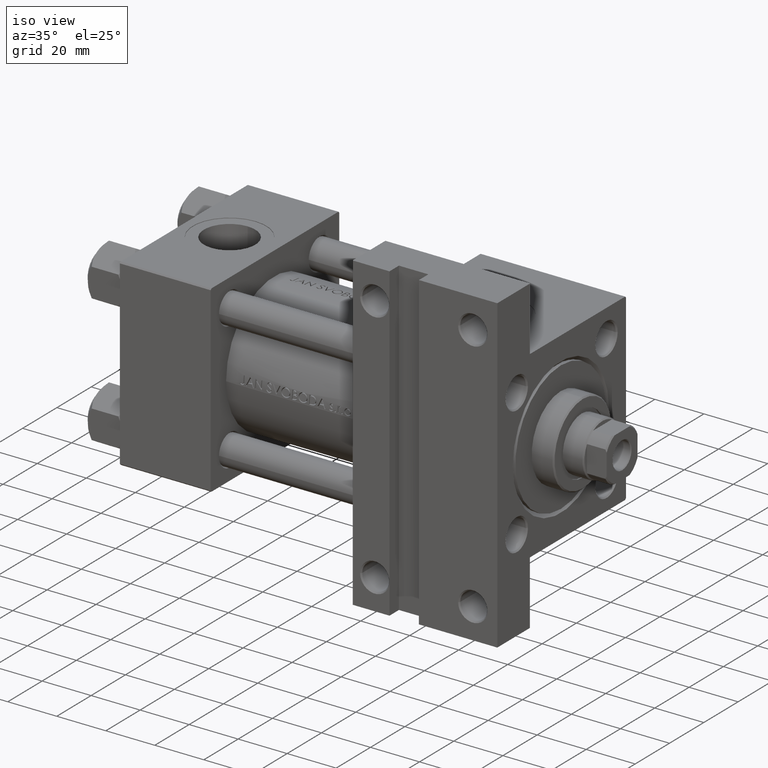
[diagram: clean part render]
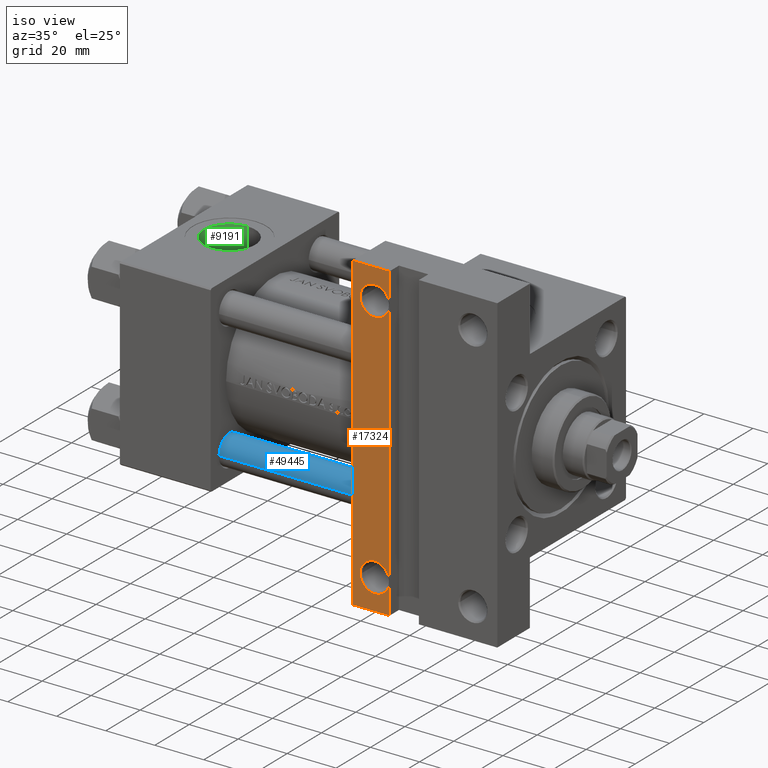
[diagram: same view with three faces highlighted in distinct colors, each labeled with its STEP entity id]
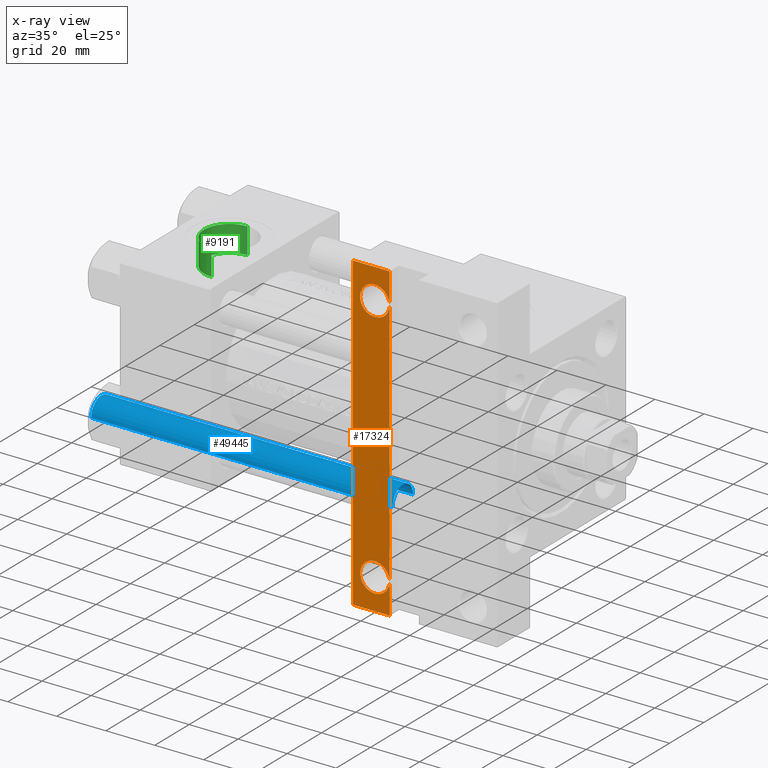
[diagram: x-ray of the same camera — body ghosted, the three highlighted faces saturated]
A machine part, iso view with three faces highlighted in distinct colors.
The next image is the same camera in x-ray (body ghosted, the three faces saturated) — at least one of them is partly hidden behind the body in this view.
Their STEP definitions:

[orange] entity #17324 — the highlighted planar face has unit normal (0, -1, 0).
#743 = CARTESIAN_POINT ( 'NONE',  ( 103.9999999999999574, 50.99999999999999289, -37.50000000000000000 ) ) ;
#905 = CARTESIAN_POINT ( 'NONE',  ( 98.00049999999993133, 50.99999999999999289, -37.50000000000000000 ) ) ;
#2136 = CARTESIAN_POINT ( 'NONE',  ( 103.9999999999999574, 50.99999999999999289, -37.50000000000000000 ) ) ;
#4329 = DIRECTION ( 'NONE',  ( 0.000000000000000000, 1.000000000000000000, 0.000000000000000000 ) ) ;
#4785 = AXIS2_PLACEMENT_3D ( 'NONE', #45256, #42460, #34202 ) ;
#6113 = CARTESIAN_POINT ( 'NONE',  ( 95.00000000000000000, 63.50000000000000000, -37.50000000000000000 ) ) ;
#6211 = LINE ( 'NONE', #30039, #19925 ) ;
#6879 = CARTESIAN_POINT ( 'NONE',  ( 109.9994999999999692, -50.99999999999999289, -37.50000000000000000 ) ) ;
#6944 = EDGE_CURVE ( 'NONE', #48220, #46235, #8399, .T. ) ;
#8399 = LINE ( 'NONE', #15930, #39322 ) ;
#8862 = ORIENTED_EDGE ( 'NONE', *, *, #6944, .F. ) ;
#9029 = VERTEX_POINT ( 'NONE', #905 ) ;
#10353 = CARTESIAN_POINT ( 'NONE',  ( 110.0000000000000000, 63.50000000000000000, -37.50000000000000000 ) ) ;
#11509 = CARTESIAN_POINT ( 'NONE',  ( 98.00049999999993133, -50.99999999999999289, -37.50000000000000000 ) ) ;
#11976 = ORIENTED_EDGE ( 'NONE', *, *, #42606, .T. ) ;
#12336 = ORIENTED_EDGE ( 'NONE', *, *, #25071, .T. ) ;
#12645 = CARTESIAN_POINT ( 'NONE',  ( 95.00000000000000000, 63.50000000000000000, -37.50000000000000000 ) ) ;
#12683 = EDGE_CURVE ( 'NONE', #43867, #46235, #6211, .T. ) ;
#15930 = CARTESIAN_POINT ( 'NONE',  ( 95.00000000000000000, 37.50000000000000000, -37.50000000000000000 ) ) ;
#16074 = DIRECTION ( 'NONE',  ( -0.000000000000000000, -0.000000000000000000, 1.000000000000000000 ) ) ;
#16335 = DIRECTION ( 'NONE',  ( -1.000000000000000000, 0.000000000000000000, 0.000000000000000000 ) ) ;
#16428 = DIRECTION ( 'NONE',  ( 1.000000000000000000, 0.000000000000000000, 0.000000000000000000 ) ) ;
#16743 = AXIS2_PLACEMENT_3D ( 'NONE', #2136, #17472, #21510 ) ;
#17324 = ADVANCED_FACE ( 'NONE', ( #28952, #25201, #18640 ), #41479, .T. ) ;
#17472 = DIRECTION ( 'NONE',  ( -0.000000000000000000, -0.000000000000000000, 1.000000000000000000 ) ) ;
#18463 = DIRECTION ( 'NONE',  ( -1.000000000000000000, 4.704334850106596780E-16, -0.000000000000000000 ) ) ;
#18486 = DIRECTION ( 'NONE',  ( -1.000000000000000000, 0.000000000000000000, 0.000000000000000000 ) ) ;
#18640 = FACE_BOUND ( 'NONE', #26028, .T. ) ;
#19067 = ORIENTED_EDGE ( 'NONE', *, *, #12683, .T. ) ;
#19925 = VECTOR ( 'NONE', #18463, 1000.000000000000000 ) ;
#20230 = DIRECTION ( 'NONE',  ( 0.000000000000000000, -1.000000000000000000, 0.000000000000000000 ) ) ;
#21030 = VECTOR ( 'NONE', #4329, 1000.000000000000000 ) ;
#21510 = DIRECTION ( 'NONE',  ( -1.000000000000000000, 0.000000000000000000, 0.000000000000000000 ) ) ;
#21522 = DIRECTION ( 'NONE',  ( -0.000000000000000000, -0.000000000000000000, 1.000000000000000000 ) ) ;
#21612 = ORIENTED_EDGE ( 'NONE', *, *, #41307, .F. ) ;
#23926 = LINE ( 'NONE', #42761, #21030 ) ;
#25071 = EDGE_CURVE ( 'NONE', #48220, #29568, #40010, .T. ) ;
#25201 = FACE_BOUND ( 'NONE', #49050, .T. ) ;
#26028 = EDGE_LOOP ( 'NONE', ( #48766, #11976 ) ) ;
#26047 = CARTESIAN_POINT ( 'NONE',  ( 103.9999999999999574, -50.99999999999999289, -37.50000000000000000 ) ) ;
#26228 = AXIS2_PLACEMENT_3D ( 'NONE', #30918, #35181, #16335 ) ;
#26324 = CARTESIAN_POINT ( 'NONE',  ( 110.0000000000000000, -63.50000000000000000, -37.50000000000000000 ) ) ;
#27197 = CIRCLE ( 'NONE', #16743, 5.999500000000018929 ) ;
#28574 = VERTEX_POINT ( 'NONE', #6879 ) ;
#28625 = CIRCLE ( 'NONE', #36659, 5.999500000000018929 ) ;
#28952 = FACE_OUTER_BOUND ( 'NONE', #45181, .T. ) ;
#29415 = CIRCLE ( 'NONE', #41451, 5.999500000000018929 ) ;
#29568 = VERTEX_POINT ( 'NONE', #10353 ) ;
#30039 = CARTESIAN_POINT ( 'NONE',  ( 94.99999999999998579, -63.50000000000000000, -37.50000000000000000 ) ) ;
#30918 = CARTESIAN_POINT ( 'NONE',  ( 103.9999999999999574, -50.99999999999999289, -37.50000000000000000 ) ) ;
#31786 = VERTEX_POINT ( 'NONE', #47335 ) ;
#33462 = EDGE_CURVE ( 'NONE', #9029, #31786, #27197, .T. ) ;
#33799 = ORIENTED_EDGE ( 'NONE', *, *, #33462, .T. ) ;
#34202 = DIRECTION ( 'NONE',  ( -1.000000000000000000, 0.000000000000000000, -0.000000000000000000 ) ) ;
#35181 = DIRECTION ( 'NONE',  ( -0.000000000000000000, -0.000000000000000000, 1.000000000000000000 ) ) ;
#36659 = AXIS2_PLACEMENT_3D ( 'NONE', #743, #16074, #42445 ) ;
#37450 = CIRCLE ( 'NONE', #26228, 5.999500000000018929 ) ;
#38655 = VERTEX_POINT ( 'NONE', #11509 ) ;
#39322 = VECTOR ( 'NONE', #20230, 1000.000000000000000 ) ;
#40010 = LINE ( 'NONE', #12645, #43447 ) ;
#41307 = EDGE_CURVE ( 'NONE', #43867, #29568, #23926, .T. ) ;
#41451 = AXIS2_PLACEMENT_3D ( 'NONE', #26047, #21522, #18486 ) ;
#41479 = PLANE ( 'NONE',  #4785 ) ;
#42159 = EDGE_CURVE ( 'NONE', #38655, #28574, #29415, .T. ) ;
#42445 = DIRECTION ( 'NONE',  ( -1.000000000000000000, 0.000000000000000000, 0.000000000000000000 ) ) ;
#42460 = DIRECTION ( 'NONE',  ( 0.000000000000000000, 0.000000000000000000, -1.000000000000000000 ) ) ;
#42565 = EDGE_CURVE ( 'NONE', #31786, #9029, #28625, .T. ) ;
#42606 = EDGE_CURVE ( 'NONE', #28574, #38655, #37450, .T. ) ;
#42761 = CARTESIAN_POINT ( 'NONE',  ( 110.0000000000000000, -63.50000000000000000, -37.50000000000000000 ) ) ;
#43447 = VECTOR ( 'NONE', #16428, 1000.000000000000000 ) ;
#43832 = CARTESIAN_POINT ( 'NONE',  ( 94.99999999999998579, -63.50000000000000000, -37.50000000000000000 ) ) ;
#43867 = VERTEX_POINT ( 'NONE', #26324 ) ;
#45181 = EDGE_LOOP ( 'NONE', ( #21612, #19067, #8862, #12336 ) ) ;
#45256 = CARTESIAN_POINT ( 'NONE',  ( 154.0000000000000000, 37.50000000000000000, -37.50000000000000000 ) ) ;
#46235 = VERTEX_POINT ( 'NONE', #43832 ) ;
#47335 = CARTESIAN_POINT ( 'NONE',  ( 109.9994999999999692, 50.99999999999999289, -37.50000000000000000 ) ) ;
#47545 = ORIENTED_EDGE ( 'NONE', *, *, #42565, .T. ) ;
#48220 = VERTEX_POINT ( 'NONE', #6113 ) ;
#48766 = ORIENTED_EDGE ( 'NONE', *, *, #42159, .T. ) ;
#49050 = EDGE_LOOP ( 'NONE', ( #33799, #47545 ) ) ;

[blue] entity #49445 — the highlighted cylindrical surface (edge-blend (fillet) strip) has radius 6 mm, axis along (1, 0, 0).
#890 = AXIS2_PLACEMENT_3D ( 'NONE', #1806, #5094, #9845 ) ;
#1660 = CIRCLE ( 'NONE', #8086, 6.000000000000000888 ) ;
#1722 = ORIENTED_EDGE ( 'NONE', *, *, #39454, .T. ) ;
#1806 = CARTESIAN_POINT ( 'NONE',  ( 0.000000000000000000, 0.000000000000000000, 123.5000000000000426 ) ) ;
#5094 = DIRECTION ( 'NONE',  ( 0.000000000000000000, 0.000000000000000000, -1.000000000000000000 ) ) ;
#5825 = CARTESIAN_POINT ( 'NONE',  ( -6.000000000000000888, 0.000000000000000000, 123.5000000000000426 ) ) ;
#7386 = DIRECTION ( 'NONE',  ( -1.000000000000000000, 0.000000000000000000, 0.000000000000000000 ) ) ;
#8086 = AXIS2_PLACEMENT_3D ( 'NONE', #23011, #10436, #38310 ) ;
#8233 = AXIS2_PLACEMENT_3D ( 'NONE', #49348, #23485, #7386 ) ;
#9801 = EDGE_LOOP ( 'NONE', ( #1722, #28892, #25367, #32521 ) ) ;
#9845 = DIRECTION ( 'NONE',  ( 1.000000000000000000, 0.000000000000000000, 0.000000000000000000 ) ) ;
#10436 = DIRECTION ( 'NONE',  ( -0.000000000000000000, -0.000000000000000000, 1.000000000000000000 ) ) ;
#11152 = CYLINDRICAL_SURFACE ( 'NONE', #8233, 6.000000000000000888 ) ;
#11625 = CARTESIAN_POINT ( 'NONE',  ( 6.000000000000000888, 7.347880794884120722E-16, 0.4999999999999865663 ) ) ;
#12187 = EDGE_CURVE ( 'NONE', #33041, #44934, #44758, .T. ) ;
#15139 = VERTEX_POINT ( 'NONE', #5825 ) ;
#15449 = CARTESIAN_POINT ( 'NONE',  ( -6.000000000000000888, 0.000000000000000000, 124.0000000000000000 ) ) ;
#20235 = DIRECTION ( 'NONE',  ( -0.000000000000000000, -0.000000000000000000, -1.000000000000000000 ) ) ;
#20353 = CARTESIAN_POINT ( 'NONE',  ( 6.000000000000000888, 7.347880794884120722E-16, 123.5000000000000426 ) ) ;
#20795 = EDGE_CURVE ( 'NONE', #44934, #21183, #1660, .T. ) ;
#21183 = VERTEX_POINT ( 'NONE', #37285 ) ;
#23011 = CARTESIAN_POINT ( 'NONE',  ( 0.000000000000000000, 0.000000000000000000, 0.4999999999999865663 ) ) ;
#23485 = DIRECTION ( 'NONE',  ( -0.000000000000000000, -0.000000000000000000, -1.000000000000000000 ) ) ;
#23867 = VECTOR ( 'NONE', #29975, 1000.000000000000000 ) ;
#25367 = ORIENTED_EDGE ( 'NONE', *, *, #20795, .T. ) ;
#28892 = ORIENTED_EDGE ( 'NONE', *, *, #12187, .T. ) ;
#29975 = DIRECTION ( 'NONE',  ( -0.000000000000000000, -0.000000000000000000, -1.000000000000000000 ) ) ;
#32521 = ORIENTED_EDGE ( 'NONE', *, *, #48111, .F. ) ;
#33041 = VERTEX_POINT ( 'NONE', #20353 ) ;
#37285 = CARTESIAN_POINT ( 'NONE',  ( -6.000000000000000888, 0.000000000000000000, 0.4999999999999865663 ) ) ;
#38310 = DIRECTION ( 'NONE',  ( 1.000000000000000000, 0.000000000000000000, 0.000000000000000000 ) ) ;
#39454 = EDGE_CURVE ( 'NONE', #15139, #33041, #42589, .T. ) ;
#41746 = CARTESIAN_POINT ( 'NONE',  ( 6.000000000000000888, 7.347880794884120722E-16, 124.0000000000000000 ) ) ;
#42589 = CIRCLE ( 'NONE', #890, 6.000000000000000888 ) ;
#42822 = LINE ( 'NONE', #15449, #49116 ) ;
#44758 = LINE ( 'NONE', #41746, #23867 ) ;
#44934 = VERTEX_POINT ( 'NONE', #11625 ) ;
#46074 = FACE_OUTER_BOUND ( 'NONE', #9801, .T. ) ;
#48111 = EDGE_CURVE ( 'NONE', #15139, #21183, #42822, .T. ) ;
#49116 = VECTOR ( 'NONE', #20235, 1000.000000000000000 ) ;
#49348 = CARTESIAN_POINT ( 'NONE',  ( 0.000000000000000000, 0.000000000000000000, 124.0000000000000000 ) ) ;
#49445 = ADVANCED_FACE ( 'NONE', ( #46074 ), #11152, .T. ) ;

[green] entity #9191 — the highlighted cylindrical surface (edge-blend (fillet) strip) has radius 10.48 mm, axis along (-0, -0, 1).
#825 = EDGE_CURVE ( 'NONE', #29812, #41911, #19608, .T. ) ;
#1320 = EDGE_CURVE ( 'NONE', #41911, #26263, #22420, .T. ) ;
#1713 = EDGE_CURVE ( 'NONE', #12114, #26263, #11585, .T. ) ;
#1967 = EDGE_LOOP ( 'NONE', ( #46906, #41217, #2759, #11846 ) ) ;
#2759 = ORIENTED_EDGE ( 'NONE', *, *, #1713, .T. ) ;
#3570 = DIRECTION ( 'NONE',  ( 0.000000000000000000, 0.000000000000000000, -1.000000000000000000 ) ) ;
#3638 = DIRECTION ( 'NONE',  ( 0.000000000000000000, 0.000000000000000000, -1.000000000000000000 ) ) ;
#4689 = LINE ( 'NONE', #12718, #18498 ) ;
#9191 = ADVANCED_FACE ( 'NONE', ( #38730 ), #34724, .F. ) ;
#11505 = CARTESIAN_POINT ( 'NONE',  ( 18.50000000000000000, -26.60000000000000497, -10.48000000000000220 ) ) ;
#11585 = CIRCLE ( 'NONE', #37281, 10.48000000000000043 ) ;
#11846 = ORIENTED_EDGE ( 'NONE', *, *, #1320, .F. ) ;
#12114 = VERTEX_POINT ( 'NONE', #40756 ) ;
#12236 = DIRECTION ( 'NONE',  ( -0.000000000000000000, -1.000000000000000000, -8.673617379884036705E-17 ) ) ;
#12718 = CARTESIAN_POINT ( 'NONE',  ( 18.50000000000000000, -26.60000000000000497, 10.47999999999999865 ) ) ;
#17705 = DIRECTION ( 'NONE',  ( 0.000000000000000000, -1.000000000000000000, -8.673617379884036705E-17 ) ) ;
#18009 = AXIS2_PLACEMENT_3D ( 'NONE', #26515, #41820, #3638 ) ;
#18498 = VECTOR ( 'NONE', #12236, 1000.000000000000000 ) ;
#19608 = CIRCLE ( 'NONE', #18009, 10.48000000000000043 ) ;
#19609 = EDGE_CURVE ( 'NONE', #29812, #12114, #4689, .T. ) ;
#22420 = LINE ( 'NONE', #37245, #24447 ) ;
#24447 = VECTOR ( 'NONE', #25686, 1000.000000000000000 ) ;
#25686 = DIRECTION ( 'NONE',  ( -0.000000000000000000, -1.000000000000000000, -8.673617379884036705E-17 ) ) ;
#26263 = VERTEX_POINT ( 'NONE', #34480 ) ;
#26515 = CARTESIAN_POINT ( 'NONE',  ( 18.50000000000000000, -26.60000000000000497, -2.524022657546255111E-15 ) ) ;
#29812 = VERTEX_POINT ( 'NONE', #49006 ) ;
#34213 = DIRECTION ( 'NONE',  ( -0.000000000000000000, -1.000000000000000000, -8.673617379884036705E-17 ) ) ;
#34480 = CARTESIAN_POINT ( 'NONE',  ( 18.50000000000000000, -37.30000000000000426, -10.48000000000000398 ) ) ;
#34724 = CYLINDRICAL_SURFACE ( 'NONE', #36230, 10.48000000000000043 ) ;
#35656 = DIRECTION ( 'NONE',  ( 0.000000000000000000, 0.000000000000000000, -1.000000000000000000 ) ) ;
#36230 = AXIS2_PLACEMENT_3D ( 'NONE', #45756, #34213, #3570 ) ;
#37245 = CARTESIAN_POINT ( 'NONE',  ( 18.50000000000000000, -26.60000000000000497, -10.48000000000000220 ) ) ;
#37281 = AXIS2_PLACEMENT_3D ( 'NONE', #44329, #17705, #35656 ) ;
#38730 = FACE_OUTER_BOUND ( 'NONE', #1967, .T. ) ;
#40756 = CARTESIAN_POINT ( 'NONE',  ( 18.50000000000000000, -37.30000000000000426, 10.47999999999999687 ) ) ;
#41217 = ORIENTED_EDGE ( 'NONE', *, *, #19609, .T. ) ;
#41820 = DIRECTION ( 'NONE',  ( 0.000000000000000000, -1.000000000000000000, -8.673617379884036705E-17 ) ) ;
#41911 = VERTEX_POINT ( 'NONE', #11505 ) ;
#44329 = CARTESIAN_POINT ( 'NONE',  ( 18.50000000000000000, -37.30000000000000426, -3.452099717193846907E-15 ) ) ;
#45756 = CARTESIAN_POINT ( 'NONE',  ( 18.50000000000000000, -26.60000000000000497, -2.524022657546255111E-15 ) ) ;
#46906 = ORIENTED_EDGE ( 'NONE', *, *, #825, .F. ) ;
#49006 = CARTESIAN_POINT ( 'NONE',  ( 18.50000000000000000, -26.60000000000000497, 10.47999999999999865 ) ) ;